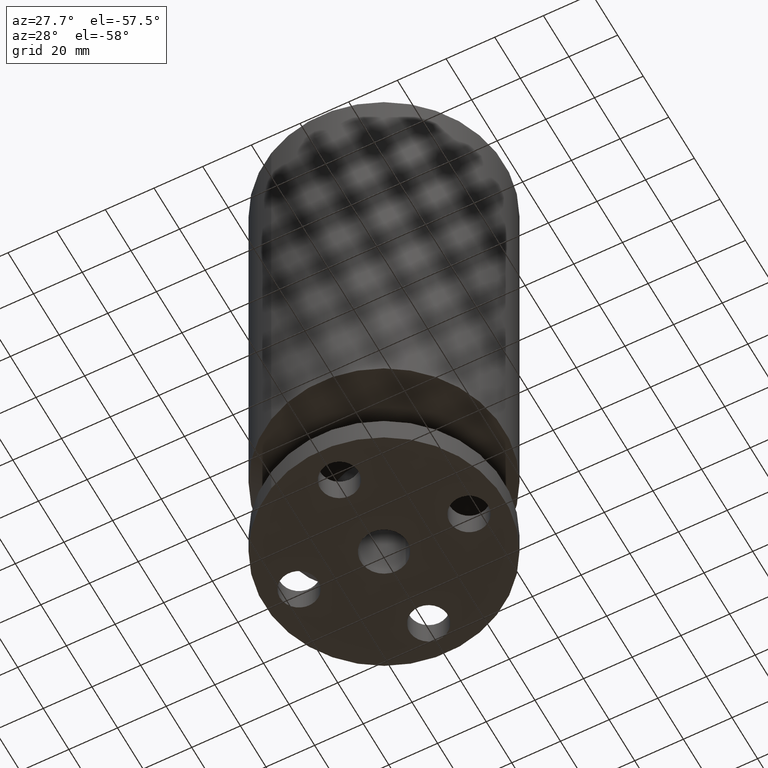
[diagram: clean part render]
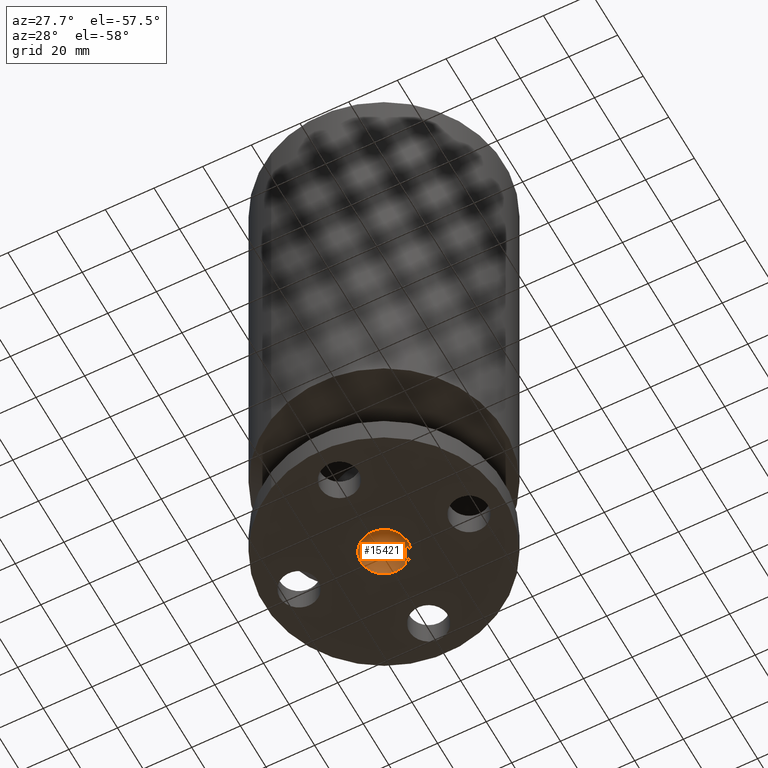
[diagram: same view with one face highlighted and labeled with its STEP entity id]
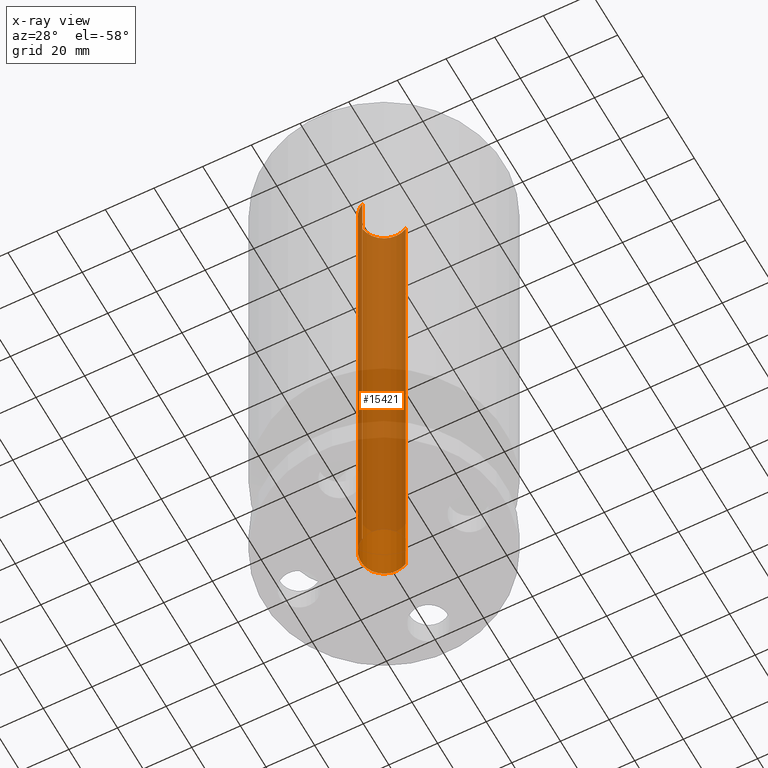
[diagram: x-ray of the same camera — body ghosted, the highlighted face saturated]
A machine part, auxiliary view. The second image highlights one B-rep face of the part: STEP entity #15421.
The next image is the same camera in x-ray: the body ghosted, the highlighted face saturated — about 87% of this face is hidden behind the body in this view.
In plain terms, the highlighted cylindrical surface (edge-blend (fillet) strip) has radius 9.525 mm, axis along (0, 0, -1).
Its self-contained STEP definition (entity closure, byte-faithful):
#14944=AXIS2_PLACEMENT_3D('Circle Axis2P3D',#14942,#14943,$) ;
#15382=AXIS2_PLACEMENT_3D('Cylinder Axis2P3D',#15379,#15380,#15381) ;
#15412=AXIS2_PLACEMENT_3D('Circle Axis2P3D',#15410,#15411,$) ;
#14942=CARTESIAN_POINT('Axis2P3D Location',(0.,0.,8.93750000004)) ;
#14946=CARTESIAN_POINT('Vertex',(-0.179784576977,-0.32909346071,8.93750000004)) ;
#14948=CARTESIAN_POINT('Vertex',(0.179784576977,0.32909346071,8.93750000004)) ;
#15379=CARTESIAN_POINT('Axis2P3D Location',(0.,0.,4.43750000002)) ;
#15388=CARTESIAN_POINT('Vertex',(-0.179784576977,-0.32909346071,0.)) ;
#15390=CARTESIAN_POINT('Vertex',(0.179784576977,0.32909346071,0.)) ;
#15393=CARTESIAN_POINT('Line Origine',(-0.179784576977,-0.32909346071,4.46875000002)) ;
#15398=CARTESIAN_POINT('Line Origine',(0.179784576977,0.32909346071,4.46875000002)) ;
#15410=CARTESIAN_POINT('Axis2P3D Location',(0.,0.,0.)) ;
#14943=DIRECTION('Axis2P3D Direction',(0.,0.,-0.0393700787402)) ;
#15380=DIRECTION('Axis2P3D Direction',(0.,0.,-0.0393700787402)) ;
#15381=DIRECTION('Axis2P3D XDirection',(-0.0188750212049,-0.0345504945626,0.)) ;
#15394=DIRECTION('Vector Direction',(0.,0.,-0.0393700787402)) ;
#15399=DIRECTION('Vector Direction',(0.,0.,-0.0393700787402)) ;
#15411=DIRECTION('Axis2P3D Direction',(0.,0.,-0.0393700787402)) ;
#15395=VECTOR('Line Direction',#15394,0.0393700787402) ;
#15400=VECTOR('Line Direction',#15399,0.0393700787402) ;
#15416=ORIENTED_EDGE('',*,*,#15414,.F.) ;
#15417=ORIENTED_EDGE('',*,*,#15402,.F.) ;
#15418=ORIENTED_EDGE('',*,*,#14950,.F.) ;
#15419=ORIENTED_EDGE('',*,*,#15397,.T.) ;
#15421=ADVANCED_FACE('PartBody',(#15420),#15383,.F.) ;
#14945=CIRCLE('generated circle',#14944,0.375000000001) ;
#15413=CIRCLE('generated circle',#15412,0.375000000001) ;
#15383=CYLINDRICAL_SURFACE('generated cylinder',#15382,0.375000000001) ;
#14950=EDGE_CURVE('',#14947,#14949,#14945,.T.) ;
#15397=EDGE_CURVE('',#14947,#15389,#15396,.T.) ;
#15402=EDGE_CURVE('',#14949,#15391,#15401,.T.) ;
#15414=EDGE_CURVE('',#15391,#15389,#15413,.F.) ;
#15415=EDGE_LOOP('',(#15416,#15417,#15418,#15419)) ;
#15420=FACE_OUTER_BOUND('',#15415,.T.) ;
#15396=LINE('Line',#15393,#15395) ;
#15401=LINE('Line',#15398,#15400) ;
#14947=VERTEX_POINT('',#14946) ;
#14949=VERTEX_POINT('',#14948) ;
#15389=VERTEX_POINT('',#15388) ;
#15391=VERTEX_POINT('',#15390) ;